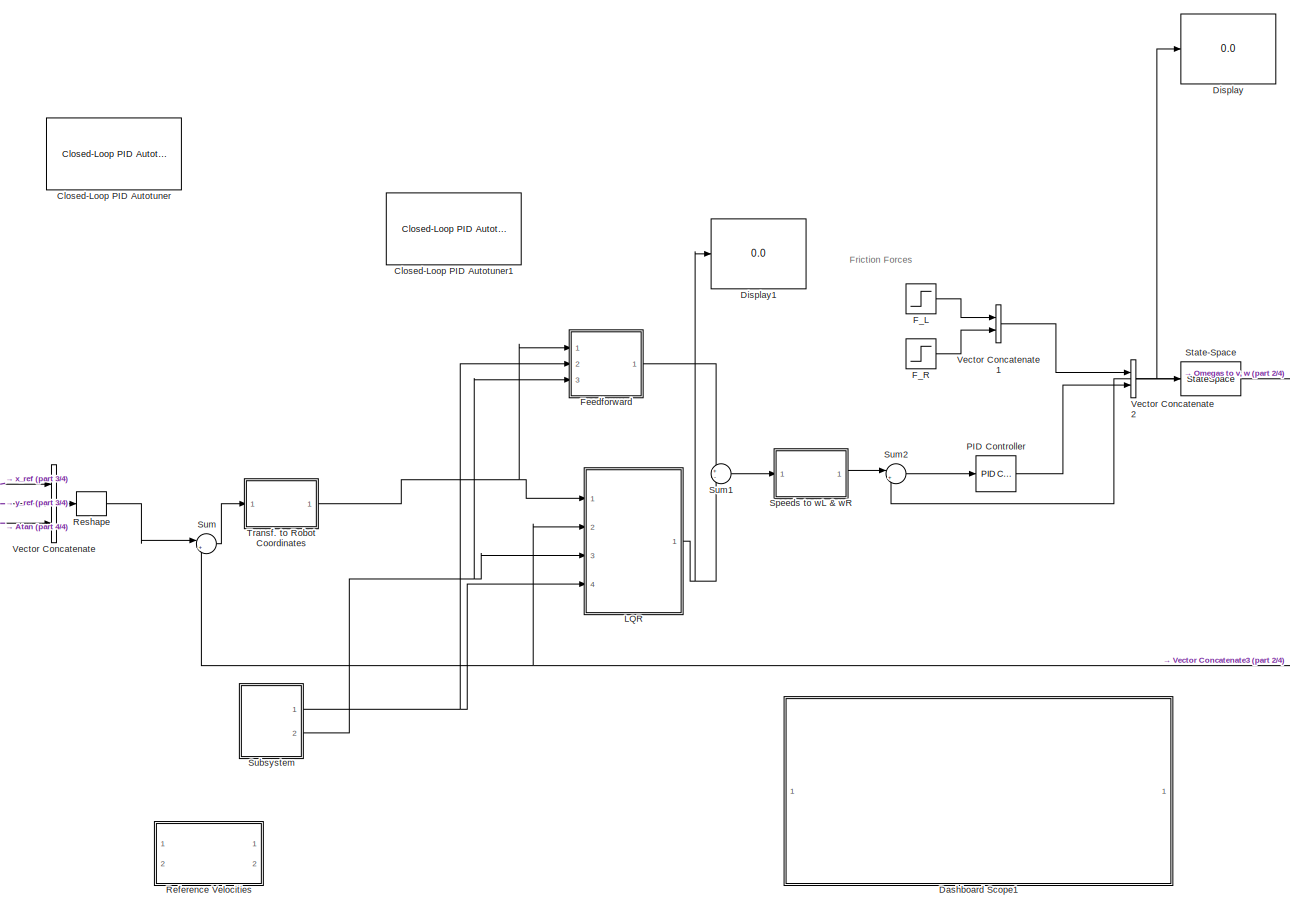
[diagram: root canvas - part 1/4, center side, full height]
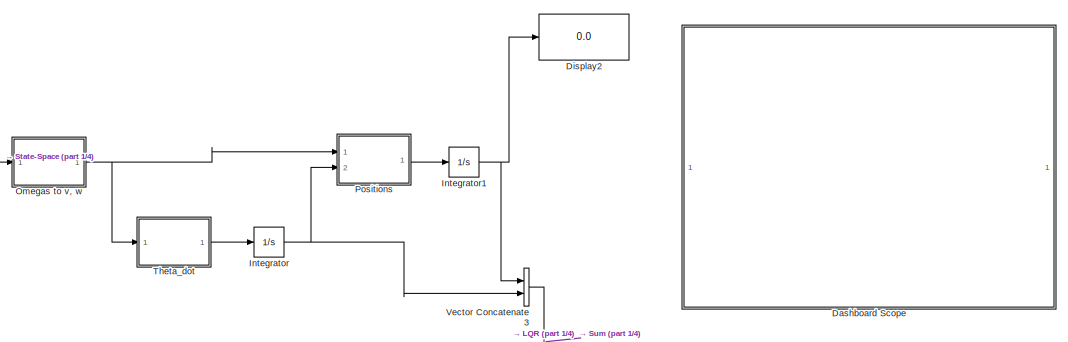
[diagram: root canvas - part 2/4, middle right region]
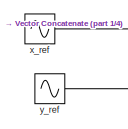
[diagram: root canvas - part 3/4, middle left region]
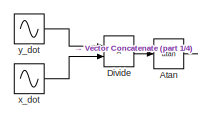
[diagram: root canvas - part 4/4, bottom left region]
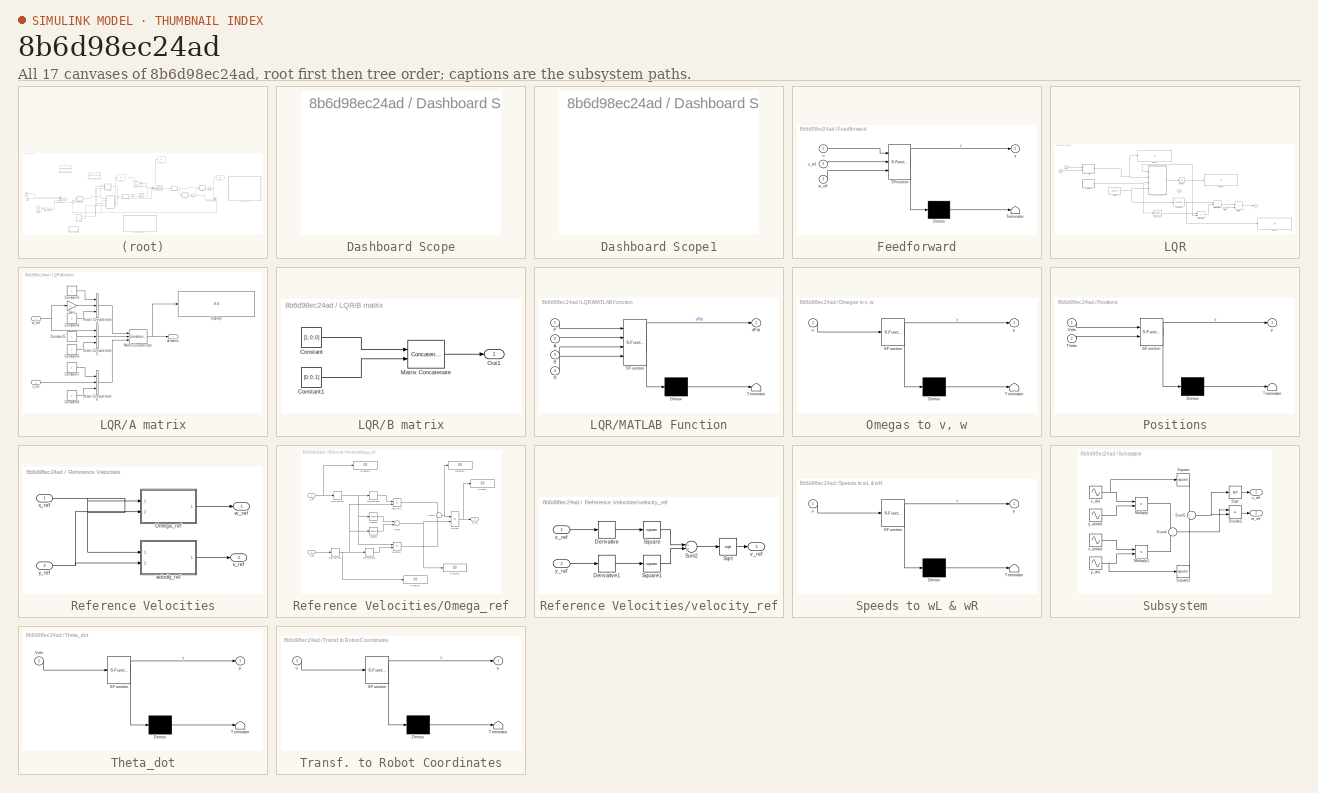
[diagram: thumbnail index - all 17 canvases of the model, root first then tree order]
MODEL slx_8b6d98ec24ad
KIND model
CONFIG AbsTol = auto
CONFIG EnableMultiTasking = off
CONFIG FixedStep = auto
CONFIG MaxStep = auto
CONFIG MinStep = auto
CONFIG RelTol = 1e-3
CONFIG SampleTimeConstraint = Unconstrained
CONFIG Solver = ode15s
CONFIG SolverName = ode15s
CONFIG StartTime = 0.0
CONFIG StopTime = 10.0
BLOCK [Trigonometry] Atan
  Operator = atan
  Ports = [1, 1]
BLOCK [Reference] Closed-Loop PID Autotuner  REF=slctrlblks/Closed-Loop PID Autotuner
  Ports = [3, 3]
  SourceBlock = slctrlblks/Closed-Loop PID Autotuner
  SourceProductBaseCode = SD
  SourceProductName = Simulink Control Design
  SourceType = ClosedLoopOnlinePIDTuner
BLOCK [Reference] Closed-Loop PID Autotuner1  REF=slctrlblks/Closed-Loop PID Autotuner
  Ports = [3, 3]
  SourceBlock = slctrlblks/Closed-Loop PID Autotuner
  SourceProductBaseCode = SD
  SourceProductName = Simulink Control Design
  SourceType = ClosedLoopOnlinePIDTuner
BLOCK [SubSystem] Dashboard Scope
  DialogController = hmiCreateDDGDialog
  IsWebBlock = on
  MaskHideContents = on
  Ports = []
  RequestExecContextInheritance = off
BLOCK [SubSystem] Dashboard Scope1
  DialogController = hmiCreateDDGDialog
  IsWebBlock = on
  MaskHideContents = on
  Ports = []
  RequestExecContextInheritance = off
BLOCK [Display] Display
  Decimation = 1
  Ports = [1]
BLOCK [Display] Display1
  Decimation = 1
  Ports = [1]
BLOCK [Display] Display2
  Decimation = 1
  Ports = [1]
BLOCK [Product] Divide
  InputSameDT = off
  Inputs = */
  OutDataTypeStr = Inherit: Inherit via internal rule
  Ports = [2, 1]
  RndMeth = Floor
  SaturateOnIntegerOverflow = off
BLOCK [Step] F_L
  After = 0.1
  SampleTime = 0
BLOCK [Step] F_R
  After = 0.1
  SampleTime = 0
BLOCK [SubSystem] Feedforward
  ErrorFcn = Stateflow.Translate.translate
  PermitHierarchicalResolution = ExplicitOnly
  Ports = [3, 1]
  RequestExecContextInheritance = off
  SFBlockType = MATLAB Function
  TreatAsAtomicUnit = on
BLOCK [Demux] Feedforward/ Demux 
  Outputs = 1
  Ports = [1, 1]
BLOCK [S-Function] Feedforward/ SFunction 
  EnableBusSupport = on
  FunctionName = sf_sfun
  PortCounts = [3 2]
  Ports = [3, 2]
  SFcnIsStateOwnerBlock = off
  SFunctionDeploymentMode = off
  Tag = Stateflow S-Function kh4_controller 3
BLOCK [Terminator] Feedforward/ Terminator 
BLOCK [Inport] Feedforward/u
  IconDisplay = Port number
BLOCK [Inport] Feedforward/v_ref
  IconDisplay = Port number
  Port = 2
BLOCK [Inport] Feedforward/w_ref
  IconDisplay = Port number
  Port = 3
BLOCK [Outport] Feedforward/y
  IconDisplay = Port number
BLOCK [Integrator] Integrator
  Ports = [1, 1]
BLOCK [Integrator] Integrator1
  Ports = [1, 1]
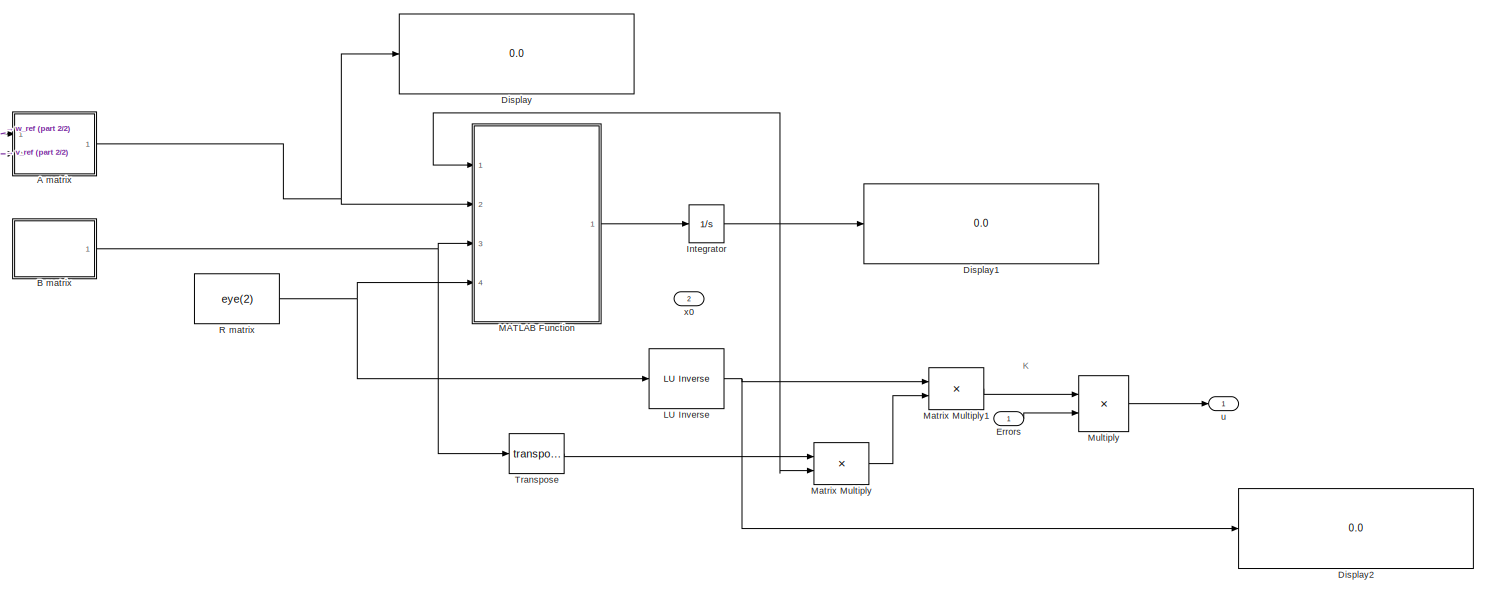
[diagram: LQR - part 1/2, most of the canvas]
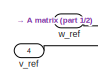
[diagram: LQR - part 2/2, top left region]
BLOCK [SubSystem] LQR
  Ports = [4, 1]
  RequestExecContextInheritance = off
BLOCK [Reference] LQR/ LU Inverse  REF=dspinverses/ LU Inverse
  Ports = [1, 1]
  SourceBlock = dspinverses/ LU Inverse
  SourceProductBaseCode = DS
  SourceProductName = DSP System Toolbox
  SourceType = LU Inverse
BLOCK [SubSystem] LQR/A matrix
  Ports = [2, 1]
  RequestExecContextInheritance = off
BLOCK [Outport] LQR/A matrix/A matrix
  IconDisplay = Port number
BLOCK [Constant] LQR/A matrix/Constant3
BLOCK [Constant] LQR/A matrix/Constant4
  Value = 0
BLOCK [Constant] LQR/A matrix/Constant5
BLOCK [Constant] LQR/A matrix/Constant6
  Value = 0
BLOCK [Constant] LQR/A matrix/Constant7
BLOCK [Constant] LQR/A matrix/Constant8
  Value = 0
BLOCK [Display] LQR/A matrix/Display
  Decimation = 1
  Ports = [1]
BLOCK [Gain] LQR/A matrix/Gain
  Gain = -1
  OutDataTypeStr = Inherit: Inherit via internal rule
  ParamDataTypeStr = Inherit: Inherit via internal rule
  SaturateOnIntegerOverflow = off
BLOCK [Concatenate] LQR/A matrix/Matrix Concatenate
  ConcatenateDimension = 2
  Mode = Multidimensional array
  NumInputs = 3
  Ports = [3, 1]
BLOCK [Concatenate] LQR/A matrix/Vector Concatenate4
  NumInputs = 3
  Ports = [3, 1]
BLOCK [Concatenate] LQR/A matrix/Vector Concatenate5
  NumInputs = 3
  Ports = [3, 1]
BLOCK [Concatenate] LQR/A matrix/Vector Concatenate6
  NumInputs = 3
  Ports = [3, 1]
BLOCK [Inport] LQR/A matrix/v_ref
  IconDisplay = Port number
  Port = 2
  VarSizeSig = No
BLOCK [Inport] LQR/A matrix/w_ref
  IconDisplay = Port number
BLOCK [SubSystem] LQR/B matrix
  Ports = [0, 1]
  RequestExecContextInheritance = off
BLOCK [Constant] LQR/B matrix/Constant
  Value = [1; 0; 0]
  VectorParams1D = off
BLOCK [Constant] LQR/B matrix/Constant1
  Value = [0; 0; 1]
  VectorParams1D = off
BLOCK [Concatenate] LQR/B matrix/Matrix Concatenate
  ConcatenateDimension = 2
  Mode = Multidimensional array
  Ports = [2, 1]
BLOCK [Outport] LQR/B matrix/Out1
  IconDisplay = Port number
BLOCK [Display] LQR/Display
  Decimation = 1
  Ports = [1]
BLOCK [Display] LQR/Display1
  Decimation = 1
  Ports = [1]
BLOCK [Display] LQR/Display2
  Decimation = 1
  Ports = [1]
BLOCK [Inport] LQR/Errors
  IconDisplay = Port number
BLOCK [Integrator] LQR/Integrator
  InitialCondition = ones(3,3)
  Ports = [1, 1]
BLOCK [SubSystem] LQR/MATLAB Function
  ErrorFcn = Stateflow.Translate.translate
  PermitHierarchicalResolution = ExplicitOnly
  Ports = [4, 1]
  RequestExecContextInheritance = off
  SFBlockType = MATLAB Function
  TreatAsAtomicUnit = on
BLOCK [Demux] LQR/MATLAB Function/ Demux 
  Outputs = 1
  Ports = [1, 1]
BLOCK [S-Function] LQR/MATLAB Function/ SFunction 
  EnableBusSupport = on
  FunctionName = sf_sfun
  PortCounts = [4 2]
  Ports = [4, 2]
  SFcnIsStateOwnerBlock = off
  SFunctionDeploymentMode = off
  Tag = Stateflow S-Function kh4_controller 8
BLOCK [Terminator] LQR/MATLAB Function/ Terminator 
BLOCK [Inport] LQR/MATLAB Function/A
  IconDisplay = Port number
  Port = 2
BLOCK [Inport] LQR/MATLAB Function/B
  IconDisplay = Port number
  Port = 3
BLOCK [Inport] LQR/MATLAB Function/P
  IconDisplay = Port number
BLOCK [Inport] LQR/MATLAB Function/R
  IconDisplay = Port number
  Port = 4
BLOCK [Outport] LQR/MATLAB Function/dPdt
  IconDisplay = Port number
BLOCK [Product] LQR/Matrix Multiply
  InputSameDT = off
  Multiplication = Matrix(*)
  OutDataTypeStr = Inherit: Inherit via internal rule
  Ports = [2, 1]
  RndMeth = Floor
  SaturateOnIntegerOverflow = off
BLOCK [Product] LQR/Matrix Multiply1
  InputSameDT = off
  Multiplication = Matrix(*)
  OutDataTypeStr = Inherit: Inherit via internal rule
  Ports = [2, 1]
  RndMeth = Floor
  SaturateOnIntegerOverflow = off
BLOCK [Product] LQR/Multiply
  InputSameDT = off
  Multiplication = Matrix(*)
  OutDataTypeStr = Inherit: Inherit via internal rule
  Ports = [2, 1]
  RndMeth = Floor
  SaturateOnIntegerOverflow = off
BLOCK [Constant] LQR/R matrix
  Value = eye(2)
  VectorParams1D = off
BLOCK [Math] LQR/Transpose
  Operator = transpose
  Ports = [1, 1]
BLOCK [Outport] LQR/u
  IconDisplay = Port number
BLOCK [Inport] LQR/v_ref
  IconDisplay = Port number
  Port = 4
BLOCK [Inport] LQR/w_ref
  IconDisplay = Port number
  Port = 3
BLOCK [Inport] LQR/x0
  IconDisplay = Port number
  Port = 2
BLOCK [SubSystem] Omegas to v, w
  ErrorFcn = Stateflow.Translate.translate
  PermitHierarchicalResolution = ExplicitOnly
  Ports = [1, 1]
  RequestExecContextInheritance = off
  SFBlockType = MATLAB Function
  TreatAsAtomicUnit = on
BLOCK [Demux] Omegas to v, w/ Demux 
  Outputs = 1
  Ports = [1, 1]
BLOCK [S-Function] Omegas to v, w/ SFunction 
  EnableBusSupport = on
  FunctionName = sf_sfun
  PortCounts = [1 2]
  Ports = [1, 2]
  SFcnIsStateOwnerBlock = off
  SFunctionDeploymentMode = off
  Tag = Stateflow S-Function kh4_controller 7
BLOCK [Terminator] Omegas to v, w/ Terminator 
BLOCK [Inport] Omegas to v, w/u
  IconDisplay = Port number
BLOCK [Outport] Omegas to v, w/y
  IconDisplay = Port number
BLOCK [Reference] PID Controller  REF=simulink/Continuous/PID Controller
  Ports = [1, 1]
  SourceBlock = simulink/Continuous/PID Controller
  SourceProductBaseCode = SL
  SourceProductName = Simulink
  SourceType = PID 1dof
BLOCK [SubSystem] Positions
  ErrorFcn = Stateflow.Translate.translate
  PermitHierarchicalResolution = ExplicitOnly
  Ports = [2, 1]
  RequestExecContextInheritance = off
  SFBlockType = MATLAB Function
  TreatAsAtomicUnit = on
BLOCK [Demux] Positions/ Demux 
  Outputs = 1
  Ports = [1, 1]
BLOCK [S-Function] Positions/ SFunction 
  EnableBusSupport = on
  FunctionName = sf_sfun
  PortCounts = [2 2]
  Ports = [2, 2]
  SFcnIsStateOwnerBlock = off
  SFunctionDeploymentMode = off
  Tag = Stateflow S-Function kh4_controller 6
BLOCK [Terminator] Positions/ Terminator 
BLOCK [Inport] Positions/Theta
  IconDisplay = Port number
  Port = 2
BLOCK [Inport] Positions/Vels
  IconDisplay = Port number
BLOCK [Outport] Positions/y
  IconDisplay = Port number
BLOCK [SubSystem] Reference Velocities
  Commented = on
  Ports = [2, 2]
  RequestExecContextInheritance = off
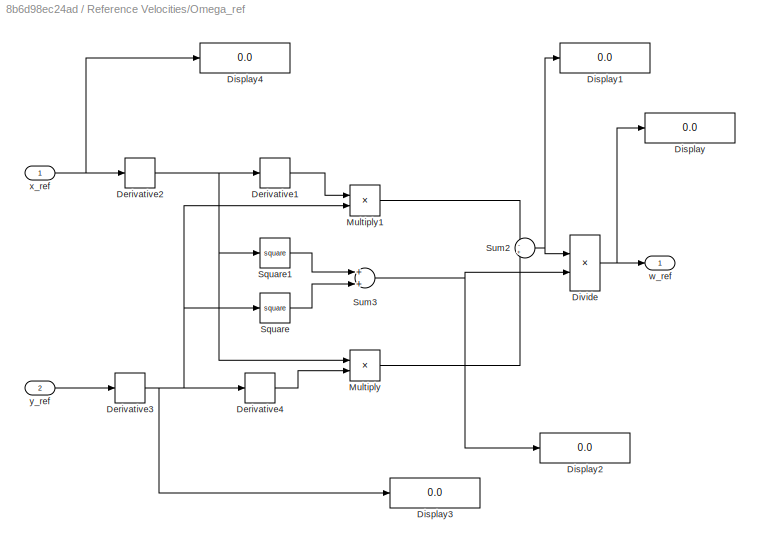
BLOCK [SubSystem] Reference Velocities/Omega_ref
  Ports = [2, 1]
  RequestExecContextInheritance = off
BLOCK [Derivative] Reference Velocities/Omega_ref/Derivative1
  CoefficientInTFapproximation = 1
BLOCK [Derivative] Reference Velocities/Omega_ref/Derivative2
  CoefficientInTFapproximation = 1
BLOCK [Derivative] Reference Velocities/Omega_ref/Derivative3
  CoefficientInTFapproximation = 1
BLOCK [Derivative] Reference Velocities/Omega_ref/Derivative4
  CoefficientInTFapproximation = 1
BLOCK [Display] Reference Velocities/Omega_ref/Display
  Decimation = 1
  Ports = [1]
BLOCK [Display] Reference Velocities/Omega_ref/Display1
  Decimation = 1
  Ports = [1]
BLOCK [Display] Reference Velocities/Omega_ref/Display2
  Decimation = 1
  Ports = [1]
BLOCK [Display] Reference Velocities/Omega_ref/Display3
  Decimation = 1
  Ports = [1]
BLOCK [Display] Reference Velocities/Omega_ref/Display4
  Decimation = 1
  Ports = [1]
BLOCK [Product] Reference Velocities/Omega_ref/Divide
  InputSameDT = off
  Inputs = */
  OutDataTypeStr = Inherit: Inherit via internal rule
  Ports = [2, 1]
  RndMeth = Floor
  SaturateOnIntegerOverflow = off
BLOCK [Product] Reference Velocities/Omega_ref/Multiply
  InputSameDT = off
  OutDataTypeStr = Inherit: Inherit via internal rule
  Ports = [2, 1]
  RndMeth = Floor
  SaturateOnIntegerOverflow = off
BLOCK [Product] Reference Velocities/Omega_ref/Multiply1
  OutDataTypeStr = Inherit: Inherit via internal rule
  Ports = [2, 1]
  RndMeth = Floor
  SaturateOnIntegerOverflow = off
BLOCK [Math] Reference Velocities/Omega_ref/Square
  Operator = square
  Ports = [1, 1]
BLOCK [Math] Reference Velocities/Omega_ref/Square1
  Operator = square
  Ports = [1, 1]
BLOCK [Sum] Reference Velocities/Omega_ref/Sum2
  IconShape = round
  InputSameDT = off
  Inputs = -+
  OutDataTypeStr = Inherit: Inherit via internal rule
  Ports = [2, 1]
  SaturateOnIntegerOverflow = off
BLOCK [Sum] Reference Velocities/Omega_ref/Sum3
  InputSameDT = off
  OutDataTypeStr = Inherit: Inherit via internal rule
  Ports = [2, 1]
  SaturateOnIntegerOverflow = off
BLOCK [Outport] Reference Velocities/Omega_ref/w_ref
  IconDisplay = Port number
BLOCK [Inport] Reference Velocities/Omega_ref/x_ref
  IconDisplay = Port number
BLOCK [Inport] Reference Velocities/Omega_ref/y_ref
  IconDisplay = Port number
  Port = 2
BLOCK [Outport] Reference Velocities/v_ref
  IconDisplay = Port number
  Port = 2
BLOCK [SubSystem] Reference Velocities/velocity_ref
  Ports = [2, 1]
  RequestExecContextInheritance = off
BLOCK [Derivative] Reference Velocities/velocity_ref/Derivative
BLOCK [Derivative] Reference Velocities/velocity_ref/Derivative1
BLOCK [Sqrt] Reference Velocities/velocity_ref/Sqrt
BLOCK [Math] Reference Velocities/velocity_ref/Square
  Operator = square
  Ports = [1, 1]
BLOCK [Math] Reference Velocities/velocity_ref/Square1
  Operator = square
  Ports = [1, 1]
BLOCK [Sum] Reference Velocities/velocity_ref/Sum2
  InputSameDT = off
  OutDataTypeStr = Inherit: Inherit via internal rule
  Ports = [2, 1]
  SaturateOnIntegerOverflow = off
BLOCK [Outport] Reference Velocities/velocity_ref/v_ref
  IconDisplay = Port number
BLOCK [Inport] Reference Velocities/velocity_ref/x_ref
  IconDisplay = Port number
BLOCK [Inport] Reference Velocities/velocity_ref/y_ref
  IconDisplay = Port number
  Port = 2
BLOCK [Outport] Reference Velocities/w_ref
  IconDisplay = Port number
BLOCK [Inport] Reference Velocities/x_ref
  IconDisplay = Port number
BLOCK [Inport] Reference Velocities/y_ref
  IconDisplay = Port number
  Port = 2
BLOCK [Reshape] Reshape
  OutputDimensionality = Column vector (2-D)
  Ports = [1, 1]
BLOCK [SubSystem] Speeds to wL & wR
  ErrorFcn = Stateflow.Translate.translate
  PermitHierarchicalResolution = ExplicitOnly
  Ports = [1, 1]
  RequestExecContextInheritance = off
  SFBlockType = MATLAB Function
  TreatAsAtomicUnit = on
BLOCK [Demux] Speeds to wL & wR/ Demux 
  Outputs = 1
  Ports = [1, 1]
BLOCK [S-Function] Speeds to wL & wR/ SFunction 
  EnableBusSupport = on
  FunctionName = sf_sfun
  PortCounts = [1 2]
  Ports = [1, 2]
  SFcnIsStateOwnerBlock = off
  SFunctionDeploymentMode = off
  Tag = Stateflow S-Function kh4_controller 4
BLOCK [Terminator] Speeds to wL & wR/ Terminator 
BLOCK [Inport] Speeds to wL & wR/u
  IconDisplay = Port number
BLOCK [Outport] Speeds to wL & wR/y
  IconDisplay = Port number
BLOCK [StateSpace] State-Space
  A = [0, 0, 0, 0; 0, 0, 0, 0; 0, 0, -0.0100, 0; 0, 0, 0, -0.0100]
  B = [1.7699, 1.7699, 0, 0; -0.0072, -0.0072, 0, 0; -0.2100, 0, 0.2100, 0; 0, -0.2100, 0, 10.0000]
  C = [0, 0, 1, 0; 0, 0, 0, 1]
  D = [0, 0, 0, 0; 0, 0, 0, 0]
  InitialCondition = 0
  Ports = [1, 1]
BLOCK [SubSystem] Subsystem
  Ports = [0, 2]
  RequestExecContextInheritance = off
BLOCK [Product] Subsystem/Divide1
  InputSameDT = off
  Inputs = */
  OutDataTypeStr = Inherit: Inherit via internal rule
  Ports = [2, 1]
  RndMeth = Floor
  SaturateOnIntegerOverflow = off
BLOCK [Product] Subsystem/Multiply
  InputSameDT = off
  OutDataTypeStr = Inherit: Inherit via internal rule
  Ports = [2, 1]
  RndMeth = Floor
  SaturateOnIntegerOverflow = off
BLOCK [Product] Subsystem/Multiply1
  InputSameDT = off
  OutDataTypeStr = Inherit: Inherit via internal rule
  Ports = [2, 1]
  RndMeth = Floor
  SaturateOnIntegerOverflow = off
BLOCK [Sqrt] Subsystem/Sqrt
BLOCK [Math] Subsystem/Square
  Operator = square
  Ports = [1, 1]
BLOCK [Math] Subsystem/Square1
  Operator = square
  Ports = [1, 1]
BLOCK [Sum] Subsystem/Sum4
  IconShape = round
  InputSameDT = off
  Inputs = +-
  OutDataTypeStr = Inherit: Inherit via internal rule
  Ports = [2, 1]
  SaturateOnIntegerOverflow = off
BLOCK [Sum] Subsystem/Sum5
  IconShape = round
  InputSameDT = off
  OutDataTypeStr = Inherit: Inherit via internal rule
  Ports = [2, 1]
  SaturateOnIntegerOverflow = off
BLOCK [Outport] Subsystem/v_ref
  IconDisplay = Port number
BLOCK [Outport] Subsystem/w_ref
  IconDisplay = Port number
  Port = 2
BLOCK [Sin] Subsystem/x_dot
  Amplitude = 0.3^2
  Frequency = 0.3
  Phase = pi/2
  Ports = [0, 1]
  SampleTime = 0
BLOCK [Sin] Subsystem/x_dotdot
  Amplitude = -0.3^3
  Frequency = 0.3
  Ports = [0, 1]
  SampleTime = 0
BLOCK [Sin] Subsystem/y_dot
  Amplitude = -0.3^2
  Frequency = 0.3
  Ports = [0, 1]
  SampleTime = 0
BLOCK [Sin] Subsystem/y_dotdot
  Amplitude = -0.3^3
  Frequency = 0.3
  Phase = pi/2
  Ports = [0, 1]
  SampleTime = 0
BLOCK [Sum] Sum
  IconShape = round
  InputSameDT = off
  Inputs = |+-
  OutDataTypeStr = Inherit: Inherit via internal rule
  Ports = [2, 1]
  SaturateOnIntegerOverflow = off
BLOCK [Sum] Sum1
  IconShape = round
  InputSameDT = off
  Inputs = +-
  OutDataTypeStr = Inherit: Inherit via internal rule
  Ports = [2, 1]
  SaturateOnIntegerOverflow = off
BLOCK [Sum] Sum2
  IconShape = round
  InputSameDT = off
  Inputs = |+-
  OutDataTypeStr = Inherit: Inherit via internal rule
  Ports = [2, 1]
  SaturateOnIntegerOverflow = off
BLOCK [SubSystem] Theta_dot
  ErrorFcn = Stateflow.Translate.translate
  PermitHierarchicalResolution = ExplicitOnly
  Ports = [1, 1]
  RequestExecContextInheritance = off
  SFBlockType = MATLAB Function
  TreatAsAtomicUnit = on
BLOCK [Demux] Theta_dot/ Demux 
  Outputs = 1
  Ports = [1, 1]
BLOCK [S-Function] Theta_dot/ SFunction 
  EnableBusSupport = on
  FunctionName = sf_sfun
  PortCounts = [1 2]
  Ports = [1, 2]
  SFcnIsStateOwnerBlock = off
  SFunctionDeploymentMode = off
  Tag = Stateflow S-Function kh4_controller 5
BLOCK [Terminator] Theta_dot/ Terminator 
BLOCK [Inport] Theta_dot/Vels
  IconDisplay = Port number
BLOCK [Outport] Theta_dot/y
  IconDisplay = Port number
BLOCK [SubSystem] Transf. to Robot Coordinates
  ErrorFcn = Stateflow.Translate.translate
  PermitHierarchicalResolution = ExplicitOnly
  Ports = [1, 1]
  RequestExecContextInheritance = off
  SFBlockType = MATLAB Function
  TreatAsAtomicUnit = on
BLOCK [Demux] Transf. to Robot Coordinates/ Demux 
  Outputs = 1
  Ports = [1, 1]
BLOCK [S-Function] Transf. to Robot Coordinates/ SFunction 
  EnableBusSupport = on
  FunctionName = sf_sfun
  PortCounts = [1 2]
  Ports = [1, 2]
  SFcnIsStateOwnerBlock = off
  SFunctionDeploymentMode = off
  Tag = Stateflow S-Function kh4_controller 2
BLOCK [Terminator] Transf. to Robot Coordinates/ Terminator 
BLOCK [Inport] Transf. to Robot Coordinates/u
  IconDisplay = Port number
BLOCK [Outport] Transf. to Robot Coordinates/y
  IconDisplay = Port number
BLOCK [Concatenate] Vector Concatenate
  NumInputs = 3
  Ports = [3, 1]
BLOCK [Concatenate] Vector Concatenate1
  Ports = [2, 1]
BLOCK [Concatenate] Vector Concatenate2
  Ports = [2, 1]
BLOCK [Concatenate] Vector Concatenate3
  Ports = [2, 1]
BLOCK [Sin] x_dot
  Amplitude = 0.3^2
  Frequency = 0.3
  Phase = pi/2
  Ports = [0, 1]
  SampleTime = 0
BLOCK [Sin] x_ref
  Amplitude = 0.3
  Frequency = 0.3
  Ports = [0, 1]
  SampleTime = 0
BLOCK [Sin] y_dot
  Amplitude = -0.3^2
  Frequency = 0.3
  Ports = [0, 1]
  SampleTime = 0
BLOCK [Sin] y_ref
  Amplitude = 0.3
  Frequency = 0.3
  Phase = pi/2
  Ports = [0, 1]
  SampleTime = 0
ANNOTATION (root): Friction Forces
ANNOTATION LQR: K
LINE Atan:1 -> Vector Concatenate:3
LINE Divide:1 -> Atan:1
LINE F_L:1 -> Vector Concatenate1:1
LINE F_R:1 -> Vector Concatenate1:2
LINE Feedforward:1 -> Sum1:1
NET Integrator1:1 -> Display2:1, Vector Concatenate3:1
NET Integrator:1 -> Positions:2, Vector Concatenate3:2
NET LQR/ LU Inverse:1 -> LQR/Display2:1, LQR/Matrix Multiply1:1
LINE LQR/A matrix/Constant3:1 -> LQR/A matrix/Vector Concatenate4:1
LINE LQR/A matrix/Constant4:1 -> LQR/A matrix/Vector Concatenate4:3
LINE LQR/A matrix/Constant5:1 -> LQR/A matrix/Vector Concatenate5:2
LINE LQR/A matrix/Constant6:1 -> LQR/A matrix/Vector Concatenate5:3
LINE LQR/A matrix/Constant7:1 -> LQR/A matrix/Vector Concatenate6:1
LINE LQR/A matrix/Constant8:1 -> LQR/A matrix/Vector Concatenate6:3
LINE LQR/A matrix/Gain:1 -> LQR/A matrix/Vector Concatenate4:2
NET LQR/A matrix/Matrix Concatenate:1 -> LQR/A matrix/A matrix:1, LQR/A matrix/Display:1
LINE LQR/A matrix/Vector Concatenate4:1 -> LQR/A matrix/Matrix Concatenate:1
LINE LQR/A matrix/Vector Concatenate5:1 -> LQR/A matrix/Matrix Concatenate:2
LINE LQR/A matrix/Vector Concatenate6:1 -> LQR/A matrix/Matrix Concatenate:3
LINE LQR/A matrix/v_ref:1 -> LQR/A matrix/Vector Concatenate6:2
NET LQR/A matrix/w_ref:1 -> LQR/A matrix/Gain:1, LQR/A matrix/Vector Concatenate5:1
NET LQR/A matrix:1 -> LQR/Display:1, LQR/MATLAB Function:2
LINE LQR/B matrix/Constant1:1 -> LQR/B matrix/Matrix Concatenate:2
LINE LQR/B matrix/Constant:1 -> LQR/B matrix/Matrix Concatenate:1
LINE LQR/B matrix/Matrix Concatenate:1 -> LQR/B matrix/Out1:1
NET LQR/B matrix:1 -> LQR/MATLAB Function:3, LQR/Transpose:1
LINE LQR/Errors:1 -> LQR/Multiply:2
NET LQR/Integrator:1 -> LQR/Display1:1, LQR/MATLAB Function:1, LQR/Matrix Multiply:2
LINE LQR/MATLAB Function:1 -> LQR/Integrator:1
LINE LQR/Matrix Multiply1:1 -> LQR/Multiply:1
LINE LQR/Matrix Multiply:1 -> LQR/Matrix Multiply1:2
LINE LQR/Multiply:1 -> LQR/u:1
NET LQR/R matrix:1 -> LQR/ LU Inverse:1, LQR/MATLAB Function:4
LINE LQR/Transpose:1 -> LQR/Matrix Multiply:1
LINE LQR/v_ref:1 -> LQR/A matrix:2
LINE LQR/w_ref:1 -> LQR/A matrix:1
NET LQR:1 -> Display1:1, Sum1:2
NET Omegas to v, w:1 -> Positions:1, Theta_dot:1
LINE PID Controller:1 -> Vector Concatenate2:2
LINE Positions:1 -> Integrator1:1
LINE Reference Velocities/Omega_ref/Derivative1:1 -> Reference Velocities/Omega_ref/Multiply1:1
NET Reference Velocities/Omega_ref/Derivative2:1 -> Reference Velocities/Omega_ref/Derivative1:1, Reference Velocities/Omega_ref/Multiply:1, Reference Velocities/Omega_ref/Square1:1
NET Reference Velocities/Omega_ref/Derivative3:1 -> Reference Velocities/Omega_ref/Derivative4:1, Reference Velocities/Omega_ref/Display3:1, Reference Velocities/Omega_ref/Multiply1:2, Reference Velocities/Omega_ref/Square:1
LINE Reference Velocities/Omega_ref/Derivative4:1 -> Reference Velocities/Omega_ref/Multiply:2
NET Reference Velocities/Omega_ref/Divide:1 -> Reference Velocities/Omega_ref/Display:1, Reference Velocities/Omega_ref/w_ref:1
LINE Reference Velocities/Omega_ref/Multiply1:1 -> Reference Velocities/Omega_ref/Sum2:1
LINE Reference Velocities/Omega_ref/Multiply:1 -> Reference Velocities/Omega_ref/Sum2:2
LINE Reference Velocities/Omega_ref/Square1:1 -> Reference Velocities/Omega_ref/Sum3:1
LINE Reference Velocities/Omega_ref/Square:1 -> Reference Velocities/Omega_ref/Sum3:2
NET Reference Velocities/Omega_ref/Sum2:1 -> Reference Velocities/Omega_ref/Display1:1, Reference Velocities/Omega_ref/Divide:1
NET Reference Velocities/Omega_ref/Sum3:1 -> Reference Velocities/Omega_ref/Display2:1, Reference Velocities/Omega_ref/Divide:2
NET Reference Velocities/Omega_ref/x_ref:1 -> Reference Velocities/Omega_ref/Derivative2:1, Reference Velocities/Omega_ref/Display4:1
LINE Reference Velocities/Omega_ref/y_ref:1 -> Reference Velocities/Omega_ref/Derivative3:1
LINE Reference Velocities/Omega_ref:1 -> Reference Velocities/w_ref:1
LINE Reference Velocities/velocity_ref/Derivative1:1 -> Reference Velocities/velocity_ref/Square1:1
LINE Reference Velocities/velocity_ref/Derivative:1 -> Reference Velocities/velocity_ref/Square:1
LINE Reference Velocities/velocity_ref/Sqrt:1 -> Reference Velocities/velocity_ref/v_ref:1
LINE Reference Velocities/velocity_ref/Square1:1 -> Reference Velocities/velocity_ref/Sum2:2
LINE Reference Velocities/velocity_ref/Square:1 -> Reference Velocities/velocity_ref/Sum2:1
LINE Reference Velocities/velocity_ref/Sum2:1 -> Reference Velocities/velocity_ref/Sqrt:1
LINE Reference Velocities/velocity_ref/x_ref:1 -> Reference Velocities/velocity_ref/Derivative:1
LINE Reference Velocities/velocity_ref/y_ref:1 -> Reference Velocities/velocity_ref/Derivative1:1
LINE Reference Velocities/velocity_ref:1 -> Reference Velocities/v_ref:1
NET Reference Velocities/x_ref:1 -> Reference Velocities/Omega_ref:1, Reference Velocities/velocity_ref:1
NET Reference Velocities/y_ref:1 -> Reference Velocities/Omega_ref:2, Reference Velocities/velocity_ref:2
LINE Reshape:1 -> Sum:1
LINE Speeds to wL & wR:1 -> Sum2:1
NET State-Space:1 -> Omegas to v, w:1, Sum2:2
LINE Subsystem/Divide1:1 -> Subsystem/w_ref:1
LINE Subsystem/Multiply1:1 -> Subsystem/Sum4:2
LINE Subsystem/Multiply:1 -> Subsystem/Sum4:1
LINE Subsystem/Sqrt:1 -> Subsystem/v_ref:1
LINE Subsystem/Square1:1 -> Subsystem/Sum5:2
LINE Subsystem/Square:1 -> Subsystem/Sum5:1
LINE Subsystem/Sum4:1 -> Subsystem/Divide1:1
NET Subsystem/Sum5:1 -> Subsystem/Divide1:2, Subsystem/Sqrt:1
NET Subsystem/x_dot:1 -> Subsystem/Multiply:1, Subsystem/Square:1
LINE Subsystem/x_dotdot:1 -> Subsystem/Multiply1:1
NET Subsystem/y_dot:1 -> Subsystem/Multiply1:2, Subsystem/Square1:1
LINE Subsystem/y_dotdot:1 -> Subsystem/Multiply:2
NET Subsystem:1 -> Feedforward:2, LQR:4
NET Subsystem:2 -> Feedforward:3, LQR:3
LINE Sum1:1 -> Speeds to wL & wR:1
LINE Sum2:1 -> PID Controller:1
LINE Sum:1 -> Transf. to Robot Coordinates:1
LINE Theta_dot:1 -> Integrator:1
NET Transf. to Robot Coordinates:1 -> Feedforward:1, LQR:1
LINE Vector Concatenate1:1 -> Vector Concatenate2:1
NET Vector Concatenate2:1 -> Display:1, State-Space:1
NET Vector Concatenate3:1 -> LQR:2, Sum:2
LINE Vector Concatenate:1 -> Reshape:1
LINE x_dot:1 -> Divide:2
LINE x_ref:1 -> Vector Concatenate:1
LINE y_dot:1 -> Divide:1
LINE y_ref:1 -> Vector Concatenate:2
note: NET lines group one-source signal fan-out (src -> all destinations, sorted); 1:1 wires keep LINE
CHART Transf. to Robot Coordinates states=1 transitions=1
  STATE_LABEL 'eML_blk_kernel()'
  STATE_LABEL 'SCRIPT:\nfunction y = fcn(u)\n\ntheta = u(3);\nA = [cosd(theta), sind(theta), 0;\n    -sind(theta), cosd(theta), 0;\n    0, 0, 1];\n\ny = A*u;\n\n'
CHART Feedforward states=1 transitions=1
  STATE_LABEL 'eML_blk_kernel()'
  STATE_LABEL 'SCRIPT:\nfunction y = fcn(u, v_ref, w_ref)\n\n    e3 = u(3);\n    \n    y = [cos(e3)*v_ref;\n        w_ref];\n\n'
CHART Speeds to wL & wR states=1 transitions=1
  STATE_LABEL 'eML_blk_kernel()'
  STATE_LABEL 'SCRIPT:\nfunction y = fcn(u)\n\nr = 0.021; % Wheel radius\nD = 0.145; % Robot diameter\n\nv = u(1);\nw = u(2);\n\nv_r = (2*v+w*D)/2;\nv_l = (2*v-w*D)/2;\n\nw_l = v_l/r;\nw_r = v_r/r;\n\ny =  [w_l;\n    w_r];\n\n'
CHART Theta_dot states=1 transitions=1
  STATE_LABEL 'eML_blk_kernel()'
  STATE_LABEL 'SCRIPT:\nfunction y = fcn(Vels)\n\ny = Vels(2);\n\n'
CHART Positions states=1 transitions=1
  STATE_LABEL 'eML_blk_kernel()'
  STATE_LABEL 'SCRIPT:\nfunction y = fcn(Vels, Theta)\n\nv = Vels(1);\n\nx1 = v * cosd(Theta);\nx2 = v * sind(Theta);\n\ny = [x1; x2];\n'
CHART Omegas to v, w states=1 transitions=1
  STATE_LABEL 'eML_blk_kernel()'
  STATE_LABEL 'SCRIPT:\nfunction y = fcn(u)\nr = 0.021; % Wheel radius\nD = 0.145; % Robot diameter\n\nv = u*r; \n\nv_l = v(1);\nv_r = v(2);\n\nomega = (v_r - v_l)/D;\nv = (v_r + v_l)/2;\n\ny = [v; omega];\n\n'
CHART LQR/MATLAB Function states=1 transitions=1
  STATE_LABEL 'eML_blk_kernel()'
  STATE_LABEL "SCRIPT:\nfunction dPdt  = mRiccati(P,A,B,R)\n\n% A = rand(3,3);\n% B = rand(3,2);\nQ = diag([1 1 10]);\n% R = 1e-4*diag([1 1]);\n% P = rand(3,3);\n\n% Continuous Riccati differential equation\ndPdt = -(A'*P + P*A - (P*B)*pinv(R)*(B'*P) + Q); \n\n"
